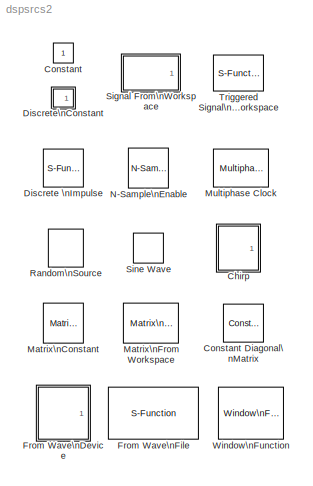
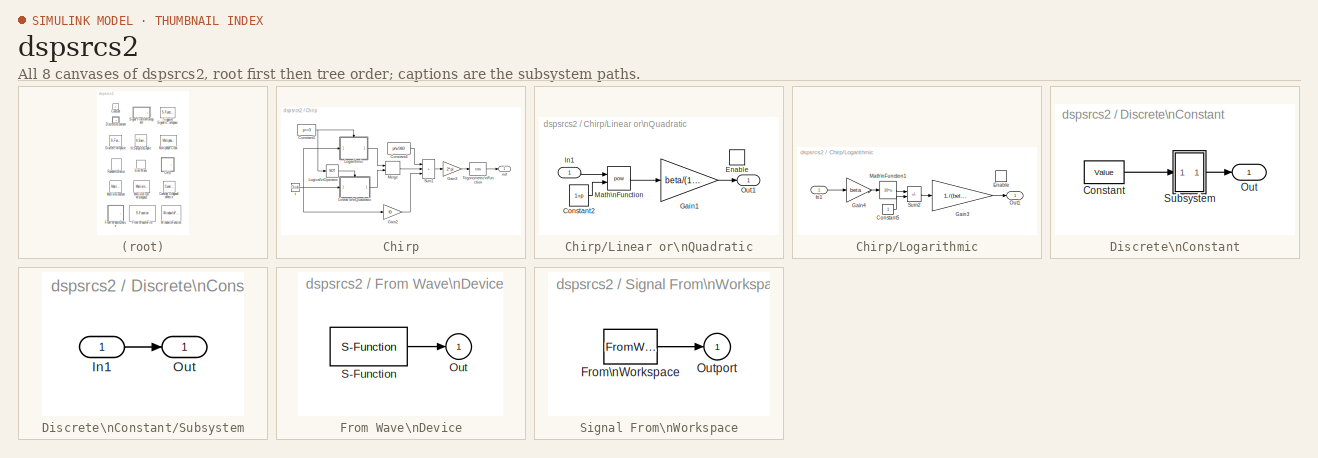
[diagram: thumbnail index - all 8 canvases of the model, root first then tree order]
MODEL dspsrcs2
KIND library
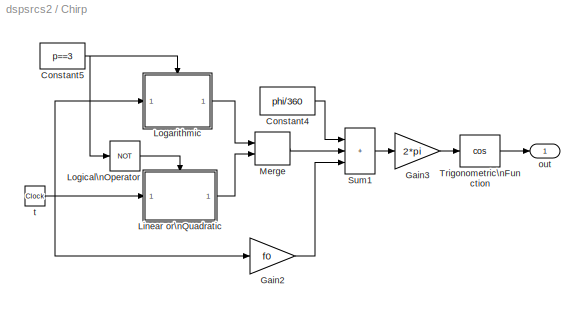
BLOCK [SubSystem] Chirp
  MaskCallbackString = ||||
  MaskDescription = Generate swept-frequency cosine with specified instantaneous frequency trajectory.
  MaskDisplay = plot(t,y);\ntext(.2,.85,txt)
  MaskEnableString = on,on,on,on,on
  MaskHelp = web(dspbhelp);
  MaskIconFrame = on
  MaskIconOpaque = on
  MaskIconRotate = none
  MaskIconUnits = normalized
  MaskInitialization = [t,y,txt] = dspblkchirp('icon');\n[beta,p] = dspblkchirp('param',method,f0,f1,t1);\n
  MaskPromptString = Frequency sweep:|Initial frequency (Hz):|Target time (secs):|Frequency at target time (Hz):|Initial phase (degrees):
  MaskStyleString = popup(Linear|Quadratic|Logarithmic),edit,edit,edit,edit
  MaskTunableValueString = on,on,on,on,on
  MaskType = Chirp
  MaskValueString = Linear|0.1|1|10|0
  MaskVariables = method=@1;f0=@2;t1=@3;f1=@4;phi=@5;
  MaskVisibilityString = on,on,on,on,on
  Ports = [0, 1]
  RTWFcnNameOpts = Auto
  RTWFileNameOpts = Auto
  RTWSystemCode = Auto
  ShowPortLabels = on
  TreatAsAtomicUnit = off
BLOCK [Constant] Chirp/Constant4
  Value = phi/360
  VectorParams1D = on
BLOCK [Constant] Chirp/Constant5
  Value = p==3
  VectorParams1D = on
BLOCK [Gain] Chirp/Gain2
  Gain = f0
  Multiplication = Element-wise(K.*u)
  SaturateOnIntegerOverflow = on
BLOCK [Gain] Chirp/Gain3
  Gain = 2*pi
  Multiplication = Element-wise(K.*u)
  SaturateOnIntegerOverflow = on
BLOCK [SubSystem] Chirp/Linear or\nQuadratic
  Ports = [1, 1, 1]
  RTWFcnNameOpts = Auto
  RTWFileNameOpts = Auto
  RTWSystemCode = Auto
  ShowPortLabels = on
  TreatAsAtomicUnit = on
BLOCK [Constant] Chirp/Linear or\nQuadratic/Constant2
  Value = 1+p
  VectorParams1D = on
BLOCK [EnablePort] Chirp/Linear or\nQuadratic/Enable
  ShowOutputPort = off
  StatesWhenEnabling = held
BLOCK [Gain] Chirp/Linear or\nQuadratic/Gain1
  Gain = beta/(1+p)
  Multiplication = Element-wise(K.*u)
  SaturateOnIntegerOverflow = on
BLOCK [Inport] Chirp/Linear or\nQuadratic/In1
  Interpolate = on
  Port = 1
BLOCK [Math] Chirp/Linear or\nQuadratic/Math\nFunction
  Operator = pow
  OutputSignalType = auto
  Ports = [2, 1]
BLOCK [Outport] Chirp/Linear or\nQuadratic/Out1
  InitialOutput = 0
  OutputWhenDisabled = held
  Port = 1
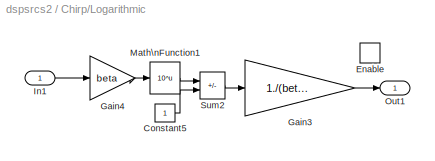
BLOCK [SubSystem] Chirp/Logarithmic
  Ports = [1, 1, 1]
  RTWFcnNameOpts = Auto
  RTWFileNameOpts = Auto
  RTWSystemCode = Auto
  ShowPortLabels = on
  TreatAsAtomicUnit = on
BLOCK [Constant] Chirp/Logarithmic/Constant5
  Value = 1
  VectorParams1D = on
BLOCK [EnablePort] Chirp/Logarithmic/Enable
  ShowOutputPort = off
  StatesWhenEnabling = held
BLOCK [Gain] Chirp/Logarithmic/Gain3
  Gain = 1./(beta.*log(10))
  Multiplication = Element-wise(K.*u)
  SaturateOnIntegerOverflow = on
BLOCK [Gain] Chirp/Logarithmic/Gain4
  Gain = beta
  Multiplication = Element-wise(K.*u)
  SaturateOnIntegerOverflow = on
BLOCK [Inport] Chirp/Logarithmic/In1
  Interpolate = on
  Port = 1
BLOCK [Math] Chirp/Logarithmic/Math\nFunction1
  Operator = 10^u
  OutputSignalType = auto
  Ports = [1, 1]
BLOCK [Outport] Chirp/Logarithmic/Out1
  InitialOutput = 0
  OutputWhenDisabled = held
  Port = 1
BLOCK [Sum] Chirp/Logarithmic/Sum2
  IconShape = rectangular
  Inputs = +-
  Ports = [2, 1]
  SaturateOnIntegerOverflow = on
BLOCK [Logic] Chirp/Logical\nOperator
  Inputs = 1
  Operator = NOT
  Ports = [1, 1]
BLOCK [Merge] Chirp/Merge
  AllowUnequalInputPortWidths = off
  InitialOutput = []
  InputPortOffsets = []
  Inputs = 2
  Ports = [2, 1]
BLOCK [Sum] Chirp/Sum1
  IconShape = rectangular
  Inputs = 3
  Ports = [3, 1]
  SaturateOnIntegerOverflow = on
BLOCK [Trigonometry] Chirp/Trigonometric\nFunction
  Operator = cos
  OutputSignalType = auto
  Ports = [1, 1]
BLOCK [Outport] Chirp/out
  InitialOutput = []
  OutputWhenDisabled = held
  Port = 1
BLOCK [Clock] Chirp/t
  Decimation = 1
  DisplayTime = off
BLOCK [Constant] Constant
  Value = 1
  VectorParams1D = on
BLOCK [Reference] Constant Diagonal\nMatrix  REF=dspmtrx2/Constant Diagonal\nMatrix
  Ports = [0, 1]
  SourceBlock = dspmtrx2/Constant Diagonal\nMatrix
  SourceType = Constant Diagonal Matrix
  n = 3
  q = 1
BLOCK [S-Function] Discrete \nImpulse
  FunctionName = sdspimpgen
  MaskCallbackString = |||
  MaskDescription = Output a discrete unit impulse.  The impulse will be offset by the number of samples in the Delay parameter.
  MaskDisplay = plot(x,y)\n\n
  MaskEnableString = on,on,on,on
  MaskHelp = web(dspbhelp);\n
  MaskIconFrame = on
  MaskIconOpaque = on
  MaskIconRotate = none
  MaskIconUnits = autoscale
  MaskInitialization = [x,y]=dspblkimpgen;
  MaskPromptString = Delay:|Sample time: |Samples per frame: |Data type:
  MaskStyleString = edit,edit,edit,popup(Double|Single|Boolean)
  MaskTunableValueString = on,on,on,on
  MaskType = Discrete Impulse
  MaskValueString = 0|1|1|Double
  MaskVariables = Delay=@1;SampleTime=@2;FrameSample=@3;Datatype=@4;
  MaskVisibilityString = on,on,on,on
  Parameters = Delay, SampleTime,FrameSample,Datatype
  PortCounts = []
  Ports = [0, 1]
  SFunctionModules = ''
BLOCK [SubSystem] Discrete\nConstant
  MaskCallbackString = |
  MaskDescription = Output a discrete-time constant.
  MaskDisplay = disp(&1);
  MaskEnableString = on,on
  MaskHelp = web(dspbhelp);\n
  MaskIconFrame = on
  MaskIconOpaque = on
  MaskIconRotate = none
  MaskIconUnits = autoscale
  MaskPromptString = Constant value:|Sample time:
  MaskStyleString = edit,edit
  MaskTunableValueString = on,on
  MaskType = Discrete Constant
  MaskValueString = 1|1
  MaskVariables = Value=@1;Ts=@2;
  MaskVisibilityString = on,on
  Ports = [0, 1]
  RTWFcnNameOpts = Auto
  RTWFileNameOpts = Auto
  RTWSystemCode = Auto
  ShowPortLabels = on
  TreatAsAtomicUnit = off
BLOCK [Constant] Discrete\nConstant/Constant
  Value = Value
  VectorParams1D = on
BLOCK [Outport] Discrete\nConstant/Out
  InitialOutput = []
  OutputWhenDisabled = held
  Port = 1
BLOCK [SubSystem] Discrete\nConstant/Subsystem
  Ports = [1, 1]
  RTWFcnNameOpts = Auto
  RTWFileNameOpts = Auto
  RTWSystemCode = Auto
  ShowPortLabels = on
  TreatAsAtomicUnit = off
BLOCK [Inport] Discrete\nConstant/Subsystem/In1
  Interpolate = on
  Port = 1
  SampleTime = Ts
BLOCK [Outport] Discrete\nConstant/Subsystem/Out
  InitialOutput = []
  OutputWhenDisabled = held
  Port = 1
BLOCK [SubSystem] From Wave\nDevice
  MaskCallbackString = dspblkwai;||||||dspblkwai;|
  MaskDescription = Reads audio data samples from a standard Windows audio device in real time.   Only for Win95/98/NT.
  MaskDisplay = patch(x1,y1); patch(x,y,[1 1 1]*.5);\npatch(x2,y2);\nplot(-.4,0,1.4,2)
  MaskEnableString = on,off,on,on,on,on,on,off
  MaskHelp = web(dspbhelp);
  MaskIconFrame = on
  MaskIconOpaque = on
  MaskIconRotate = none
  MaskIconUnits = autoscale
  MaskInitialization = [x,y,x1,y1,x2,y2] = dspblkwai('icon');\n[nChans, sRate, bps, fSize, qSize, deviceID] = dspblkwai('init', ...\n             UserRate,SamplesPerFrame,QueueDuration, userDeviceID);\n\n
  MaskPromptString = Sample rate (Hz):|User-defined sample rate (Hz):|Sample width (bits):|Stereo|Samples per frame:|Queue duration (seconds):|Use default audio device|Audio device ID: (1=1st device, 2=2nd device, ...)
  MaskStyleString = popup(8000|11025|22050|44100|User-defined),edit,popup(8|16),checkbox,edit,edit,checkbox,edit
  MaskTunableValueString = off,off,off,off,off,off,on,on
  MaskType = From Wave Device
  MaskValueString = 8000|16000|16|off|512|3|on|1
  MaskVariables = SampleRate=&1;UserRate=@2;SampleWidth=&3;Stereo=@4;SamplesPerFrame=@5;QueueDuration=@6;useDefaultDevice=@7;userDeviceID=@8;
  MaskVisibilityString = on,on,on,on,on,on,on,on
  Ports = [0, 1]
  RTWFcnNameOpts = Auto
  RTWFileNameOpts = Auto
  RTWSystemCode = Auto
  ShowPortLabels = on
  TreatAsAtomicUnit = off
BLOCK [Outport] From Wave\nDevice/Out
  InitialOutput = 0
  OutputWhenDisabled = held
  Port = 1
BLOCK [S-Function] From Wave\nDevice/S-Function
  FunctionName = sdspwai
  Parameters = nChans,sRate,bps,fSize,qSize,deviceID
  PortCounts = []
  Ports = [0, 1]
  SFunctionModules = winmm.lib
BLOCK [S-Function] From Wave\nFile
  FunctionName = sdspwafi
  MaskCallbackString = |
  MaskDescription = Reads audio data samples from a standard Windows PCM format \".WAV\" audio file.   Only for Win95/98/NT.
  MaskDisplay = disp(['From Wave File\\n' dName '\\n' mode]);\n
  MaskEnableString = on,on
  MaskHelp = web(dspbhelp);
  MaskIconFrame = on
  MaskIconOpaque = on
  MaskIconRotate = none
  MaskIconUnits = normalized
  MaskInitialization = [fName,dName,SampleRate,NChannels,mode,err] = dspblkwafi('init');\nif ~isempty(err), error(err); end\n
  MaskPromptString = File name:|Samples per frame:
  MaskStyleString = edit,edit
  MaskTunableValueString = off,off
  MaskType = From Wave File
  MaskValueString = <path>|256
  MaskVariables = FileName=&1;SamplesPerFrame=@2;
  MaskVisibilityString = on,on
  Parameters = fName, SampleRate, NChannels, SamplesPerFrame
  PortCounts = []
  Ports = [0, 1]
  SFunctionModules = winmm.lib
BLOCK [Reference] Matrix\nConstant  REF=dspmtrx2/Matrix\nConstant
  M = rand(3,3)
  Ports = [0, 1]
  SourceBlock = dspmtrx2/Matrix\nConstant
  SourceType = Matrix Constant
BLOCK [Reference] Matrix\nFrom Workspace  REF=dspmtrx2/Matrix\nFrom Workspace
  Ports = [0, 1]
  SourceBlock = dspmtrx2/Matrix\nFrom Workspace
  SourceType = Matrix From Workspace
  Ts = 1
  U = rand(3,3,5)
BLOCK [Reference] Multiphase Clock  REF=dspswit2/Multiphase Clock
  ActiveLevel = High (1)
  ClkFreq = 1
  DutyCycle = 3
  NumPhases = 4
  Ports = [0, 1]
  SourceBlock = dspswit2/Multiphase Clock
  SourceType = Multiphase Clock
  StartPhase = 1
BLOCK [Reference] N-Sample\nEnable  REF=dspswit2/N-Sample\nEnable
  ActiveLevel = High (1)
  N = 8
  Ports = [0, 1]
  SourceBlock = dspswit2/N-Sample\nEnable
  SourceType = N-Sample Enable
  TriggerType = rising
  Ts = 1
  reset = off
BLOCK [S-Function] Random\nSource
  Diagnostics = AllowInheritedTsInSrc
  FunctionName = sdsprandsrc
  MaskCallbackString = dspblkrandsrc;||||||dspblkrandsrc;|dspblkrandsrc;|||
  MaskDescription = Output a uniformly or Gaussian (normally) distributed random signal.  Output is repeatable for a given seed.
  MaskDisplay = plot(x,y);\n
  MaskEnableString = on,on,on,off,off,on,on,on,on,on,on
  MaskHelp = web(dspbhelp);
  MaskIconFrame = on
  MaskIconOpaque = on
  MaskIconRotate = none
  MaskIconUnits = normalized
  MaskInitialization = [x,y]=dspblkrandsrc;\n\n
  MaskPromptString = Source type:|Minimum:|Maximum:|Mean:|Variance:|Initial seed:|Inherit output port attributes|Sample mode: |Sample time:|Samples per frame:|Output complexity:
  MaskSelfModifiable = on
  MaskStyleString = popup(Uniform|Gaussian),edit,edit,edit,edit,edit,checkbox,popup(Continuous|Discrete),edit,edit,popup(Real|Complex)
  MaskTunableValueString = on,on,on,on,on,on,on,on,on,on,on
  MaskType = Random Source
  MaskValueString = Uniform|0|1|0|1|1|off|Discrete|1|1|Real
  MaskVariables = SrcType=@1;Min=@2;Max=@3;Mean=@4;Var=@5;Seed=@6;Inherit=@7;SampMode=@8;SampTime=@9;SampFrame=@10;OutComplex=@11;
  MaskVisibilityString = on,on,on,on,on,on,on,on,on,on,on
  Parameters = SrcType,Min,Max,Mean,Var,Seed,Inherit,SampMode,SampTime,SampFrame,OutComplex
  PortCounts = []
  Ports = [0, 1]
  SFunctionModules = ''
BLOCK [SubSystem] Signal From\nWorkspace
  MaskCallbackString = ||
  MaskDescription = Output successive signal samples obtained from the MATLAB workspace at each sample time.\n\nA signal matrix is interpreted as having one channel per column.  Signal columns may be buffered into frames by specifying a number of samples per frame greater than 1.\n
  MaskDisplay = disp(&1)
  MaskEnableString = on,on,on
  MaskHelp = web(dspbhelp);
  MaskIconFrame = on
  MaskIconOpaque = on
  MaskIconRotate = none
  MaskIconUnits = autoscale
  MaskInitialization = [s,Ts] = dspblksfw('init', X,Ts,nsamps);\n
  MaskPromptString = Signal:|Sample time:|Samples per frame:
  MaskStyleString = edit,edit,edit
  MaskTunableValueString = off,off,off
  MaskType = Signal From Workspace
  MaskValueString = 1:10|1|1
  MaskVariables = X=@1;Ts=@2;nsamps=@3;
  MaskVisibilityString = on,on,on
  Ports = [0, 1]
  RTWFcnNameOpts = Auto
  RTWFileNameOpts = Auto
  RTWSystemCode = Auto
  ShowPortLabels = on
  TreatAsAtomicUnit = off
BLOCK [FromWorkspace] Signal From\nWorkspace/From\nWorkspace
  Interpolate = off
  OutputAfterFinalValue = SettingToZero
  SampleTime = Ts
  VariableName = s
BLOCK [Outport] Signal From\nWorkspace/Outport
  InitialOutput = 0
  OutputWhenDisabled = held
  Port = 1
BLOCK [S-Function] Sine Wave
  FunctionName = sdspsine
  MaskCallbackString = |||dspblksine;|dspblksine;|dspblksine;|||
  MaskDescription = Output samples of a sinusoid.  More than one sinusoid may be generated simultaneously by entering a vector of values for the amplitude, frequency, and/or phase.
  MaskDisplay = plot(x,y)
  MaskEnableString = on,on,on,on,on,on,on,on,on
  MaskHelp = web(dspbhelp);\n
  MaskIconFrame = on
  MaskIconOpaque = on
  MaskIconRotate = none
  MaskIconUnits = autoscale
  MaskInitialization = [x,y] = dspblksine('icon');
  MaskPromptString = Amplitude:|Frequency (Hz):|Phase (rads):|Sample mode:|Output complexity:|Computation method:|Sample time:|Samples per frame:|State when re-enabled:
  MaskSelfModifiable = on
  MaskStyleString = edit,edit,edit,popup(Continuous|Discrete),popup(Real|Complex),popup(Trigonometric Fcn|Table Lookup|Differential),edit,edit,popup(Restart at time zero|Catch up to simulation time)
  MaskTunableValueString = on,on,on,off,off,off,off,off,off
  MaskType = Sine Wave
  MaskValueString = 1|100|0|Discrete|Real|Trigonometric Fcn|1/1000|1|Restart at time zero
  MaskVariables = Amplitude=@1;Frequency=@2;Phase=@3;SampleMode=@4;OutComplex=@5;CompMethod=@6;SampleTime=@7;SamplesPerFrame=@8;ResetState=@9;
  MaskVisibilityString = on,on,on,on,on,on,on,on,on
  Parameters = Amplitude,Frequency,Phase,SampleMode,OutComplex,CompMethod,SampleTime,SamplesPerFrame,ResetState
  PortCounts = []
  Ports = [0, 1]
  SFunctionModules = ''
BLOCK [S-Function] Triggered Signal\nFrom Workspace
  FunctionName = sdsptsfw
  MaskCallbackString = ||||
  MaskDescription = Output successive signal samples obtained from the MATLAB workspace when a trigger event occurs.\n\nA signal matrix is interpreted as having one channel per column.  Signal columns may be buffered into frames by specifying a number of samples per frame greater than 1.\n
  MaskDisplay = plot(x,y); disp(&1);\n
  MaskEnableString = on,on,on,on,on
  MaskHelp = web(dspbhelp);\n
  MaskIconFrame = on
  MaskIconOpaque = on
  MaskIconRotate = port
  MaskIconUnits = pixels
  MaskInitialization = X = double(X);\n[x,y]=dspblktsfw('icon',trigtype);\nU = dspblktsfw('init', X,nsamps);\nic = double(ic);\n
  MaskPromptString = Signal:|Trigger type:|Output signal repeatedly|Initial output:|Samples per frame:
  MaskStyleString = edit,popup(Rising edge|Falling edge|Either edge),checkbox,edit,edit
  MaskTunableValueString = off,off,off,off,off
  MaskType = Triggered Signal From Workspace
  MaskValueString = 1:10|Rising edge|off|0 |1
  MaskVariables = X=@1;trigtype=@2;cyclic=@3;ic=@4;nsamps=@5;
  MaskVisibilityString = on,on,on,on,on
  Parameters = U,cyclic,ic,trigtype,nsamps
  PortCounts = []
  Ports = [1, 1]
  SFunctionModules = ''
BLOCK [Reference] Window\nFunction  REF=dspbdsp2/Window\nFunction
  N = 64
  NChans = 1
  Ports = [0, 1]
  Rs = 50
  SourceBlock = dspbdsp2/Window\nFunction
  SourceType = Window Function
  beta = 10
  winmode = Generate window
  winsamp = Symmetric
  wintype = Hamming
LINE Chirp/Constant4:1 -> Chirp/Sum1:1
NET Chirp/Constant5:1 -> Chirp/Logarithmic:enable, Chirp/Logical\nOperator:1
LINE Chirp/Gain2:1 -> Chirp/Sum1:3
LINE Chirp/Gain3:1 -> Chirp/Trigonometric\nFunction:1
LINE Chirp/Linear or\nQuadratic/Constant2:1 -> Chirp/Linear or\nQuadratic/Math\nFunction:2
LINE Chirp/Linear or\nQuadratic/Gain1:1 -> Chirp/Linear or\nQuadratic/Out1:1
LINE Chirp/Linear or\nQuadratic/In1:1 -> Chirp/Linear or\nQuadratic/Math\nFunction:1
LINE Chirp/Linear or\nQuadratic/Math\nFunction:1 -> Chirp/Linear or\nQuadratic/Gain1:1
LINE Chirp/Linear or\nQuadratic:1 -> Chirp/Merge:2
LINE Chirp/Logarithmic/Constant5:1 -> Chirp/Logarithmic/Sum2:2
LINE Chirp/Logarithmic/Gain3:1 -> Chirp/Logarithmic/Out1:1
LINE Chirp/Logarithmic/Gain4:1 -> Chirp/Logarithmic/Math\nFunction1:1
LINE Chirp/Logarithmic/In1:1 -> Chirp/Logarithmic/Gain4:1
LINE Chirp/Logarithmic/Math\nFunction1:1 -> Chirp/Logarithmic/Sum2:1
LINE Chirp/Logarithmic/Sum2:1 -> Chirp/Logarithmic/Gain3:1
LINE Chirp/Logarithmic:1 -> Chirp/Merge:1
LINE Chirp/Logical\nOperator:1 -> Chirp/Linear or\nQuadratic:enable
LINE Chirp/Merge:1 -> Chirp/Sum1:2
LINE Chirp/Sum1:1 -> Chirp/Gain3:1
LINE Chirp/Trigonometric\nFunction:1 -> Chirp/out:1
NET Chirp/t:1 -> Chirp/Gain2:1, Chirp/Linear or\nQuadratic:1, Chirp/Logarithmic:1
LINE Discrete\nConstant/Constant:1 -> Discrete\nConstant/Subsystem:1
LINE Discrete\nConstant/Subsystem/In1:1 -> Discrete\nConstant/Subsystem/Out:1
LINE Discrete\nConstant/Subsystem:1 -> Discrete\nConstant/Out:1
LINE From Wave\nDevice/S-Function:1 -> From Wave\nDevice/Out:1
LINE Signal From\nWorkspace/From\nWorkspace:1 -> Signal From\nWorkspace/Outport:1
note: NET lines group one-source signal fan-out (src -> all destinations, sorted); 1:1 wires keep LINE
note: 1 file-system path scrubbed to <path> (not preserved elsewhere — flat text is the only slx artifact)
